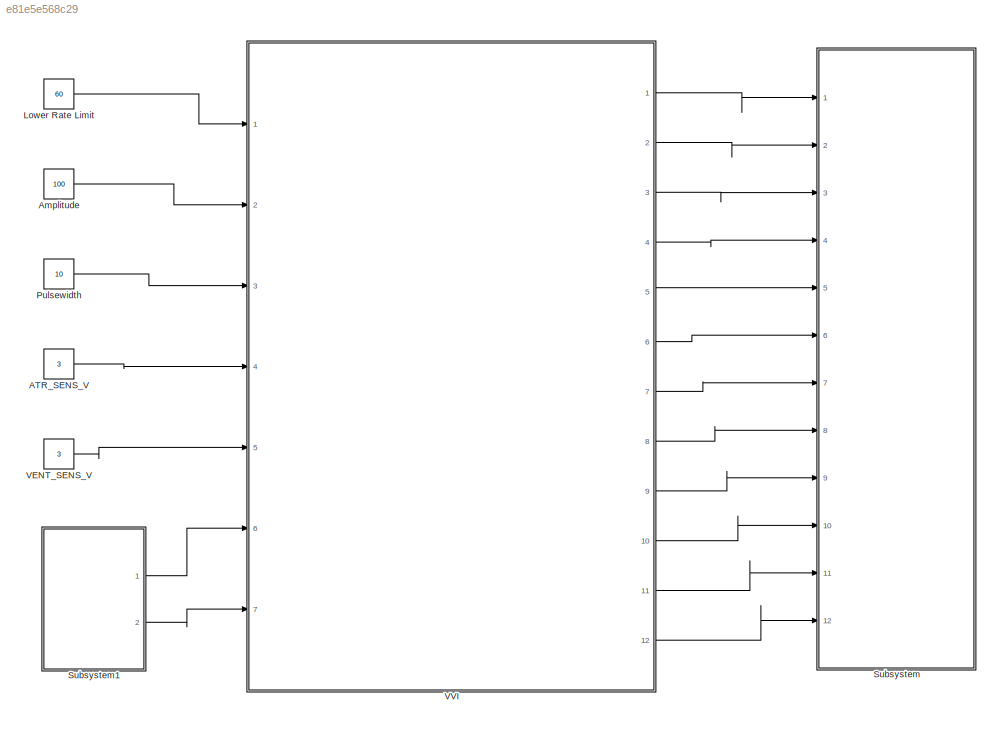
MODEL slx_e81e5e568c29
KIND model
CONFIG AbsTol = auto
CONFIG EnableMultiTasking = on
CONFIG FixedStep = 1e-3
CONFIG MaxStep = auto
CONFIG MinStep = auto
CONFIG RelTol = 1e-3
CONFIG SampleTimeConstraint = Unconstrained
CONFIG Solver = FixedStepAuto
CONFIG SolverName = FixedStepAuto
CONFIG StartTime = 0.0
CONFIG StopTime = 10.0
BLOCK [Constant] ATR_SENS_V
  Value = 3
BLOCK [Constant] Amplitude
  Value = 100
BLOCK [Constant] Lower Rate Limit
  Value = 60
BLOCK [Constant] Pulsewidth
  Value = 10
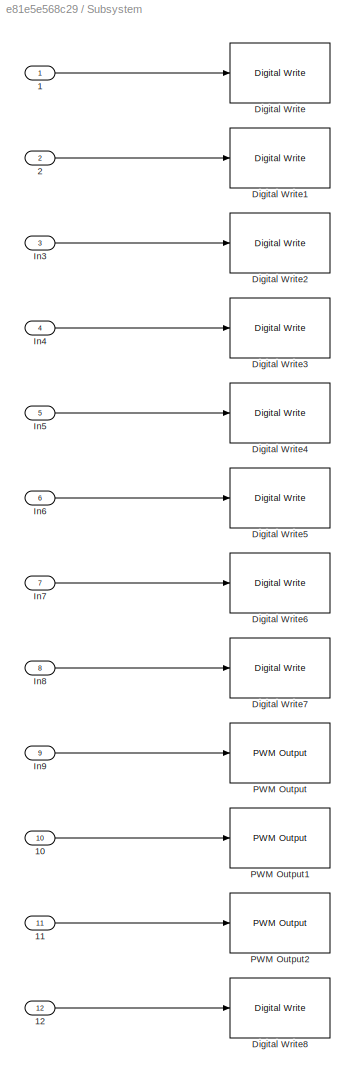
BLOCK [SubSystem] Subsystem
  Ports = [12]
BLOCK [Inport] Subsystem/1
BLOCK [Inport] Subsystem/10
  Port = 10
BLOCK [Inport] Subsystem/11
  Port = 11
BLOCK [Inport] Subsystem/12
  Port = 12
BLOCK [Inport] Subsystem/2
  Port = 2
BLOCK [Reference] Subsystem/Digital Write  REF=frdmk64flib/Digital Write
  Ports = [1]
  SourceBlock = frdmk64flib/Digital Write
  SourceType = freedomk64f.DigitalWrite
BLOCK [Reference] Subsystem/Digital Write1  REF=frdmk64flib/Digital Write
  Ports = [1]
  SourceBlock = frdmk64flib/Digital Write
  SourceType = freedomk64f.DigitalWrite
BLOCK [Reference] Subsystem/Digital Write2  REF=frdmk64flib/Digital Write
  Ports = [1]
  SourceBlock = frdmk64flib/Digital Write
  SourceType = freedomk64f.DigitalWrite
BLOCK [Reference] Subsystem/Digital Write3  REF=frdmk64flib/Digital Write
  Ports = [1]
  SourceBlock = frdmk64flib/Digital Write
  SourceType = freedomk64f.DigitalWrite
BLOCK [Reference] Subsystem/Digital Write4  REF=frdmk64flib/Digital Write
  Ports = [1]
  SourceBlock = frdmk64flib/Digital Write
  SourceType = freedomk64f.DigitalWrite
BLOCK [Reference] Subsystem/Digital Write5  REF=frdmk64flib/Digital Write
  Ports = [1]
  SourceBlock = frdmk64flib/Digital Write
  SourceType = freedomk64f.DigitalWrite
BLOCK [Reference] Subsystem/Digital Write6  REF=frdmk64flib/Digital Write
  Ports = [1]
  SourceBlock = frdmk64flib/Digital Write
  SourceType = freedomk64f.DigitalWrite
BLOCK [Reference] Subsystem/Digital Write7  REF=frdmk64flib/Digital Write
  Ports = [1]
  SourceBlock = frdmk64flib/Digital Write
  SourceType = freedomk64f.DigitalWrite
BLOCK [Reference] Subsystem/Digital Write8  REF=frdmk64flib/Digital Write
  Ports = [1]
  SourceBlock = frdmk64flib/Digital Write
  SourceType = freedomk64f.DigitalWrite
BLOCK [Inport] Subsystem/In3
  Port = 3
BLOCK [Inport] Subsystem/In4
  Port = 4
BLOCK [Inport] Subsystem/In5
  Port = 5
BLOCK [Inport] Subsystem/In6
  Port = 6
BLOCK [Inport] Subsystem/In7
  Port = 7
BLOCK [Inport] Subsystem/In8
  Port = 8
BLOCK [Inport] Subsystem/In9
  Port = 9
BLOCK [Reference] Subsystem/PWM Output  REF=frdmk64flib/PWM Output
  Ports = [1]
  SourceBlock = frdmk64flib/PWM Output
  SourceType = freedomk64f.PWMOutput
BLOCK [Reference] Subsystem/PWM Output1  REF=frdmk64flib/PWM Output
  Ports = [1]
  SourceBlock = frdmk64flib/PWM Output
  SourceType = freedomk64f.PWMOutput
BLOCK [Reference] Subsystem/PWM Output2  REF=frdmk64flib/PWM Output
  Ports = [1]
  SourceBlock = frdmk64flib/PWM Output
  SourceType = freedomk64f.PWMOutput
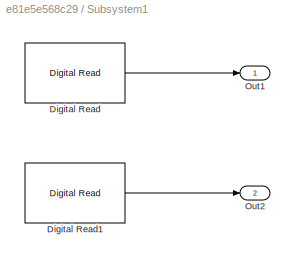
BLOCK [SubSystem] Subsystem1
  Ports = [0, 2]
BLOCK [Reference] Subsystem1/Digital Read  REF=frdmk64flib/Digital Read
  Ports = [0, 1]
  SourceBlock = frdmk64flib/Digital Read
  SourceType = freedomk64f.DigitalRead
BLOCK [Reference] Subsystem1/Digital Read1  REF=frdmk64flib/Digital Read
  Ports = [0, 1]
  SourceBlock = frdmk64flib/Digital Read
  SourceType = freedomk64f.DigitalRead
BLOCK [Outport] Subsystem1/Out1
BLOCK [Outport] Subsystem1/Out2
  Port = 2
BLOCK [Constant] VENT_SENS_V
  Value = 3
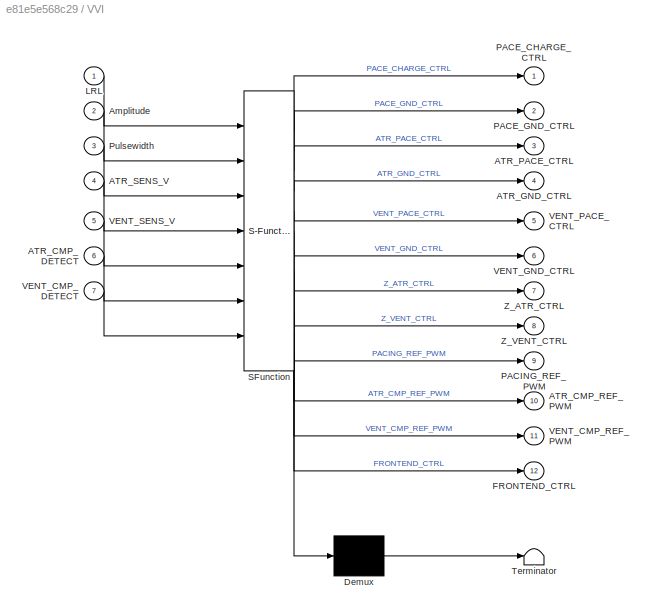
BLOCK [SubSystem] VVI
  ErrorFcn = Stateflow.Translate.translate
  PermitHierarchicalResolution = ExplicitOnly
  Ports = [7, 12]
  SFBlockType = Chart
  TreatAsAtomicUnit = on
BLOCK [Demux] VVI/ Demux 
  Outputs = 1
  Ports = [1, 1]
BLOCK [S-Function] VVI/ SFunction 
  EnableBusSupport = on
  FunctionName = sf_sfun
  PortCounts = [7 13]
  Ports = [7, 13]
  SFcnIsStateOwnerBlock = off
  SFunctionDeploymentMode = off
  Tag = Stateflow S-Function 3
BLOCK [Terminator] VVI/ Terminator 
BLOCK [Inport] VVI/ATR_CMP_DETECT
  Port = 6
BLOCK [Outport] VVI/ATR_CMP_REF_PWM
  Port = 10
BLOCK [Outport] VVI/ATR_GND_CTRL
  Port = 4
BLOCK [Outport] VVI/ATR_PACE_CTRL
  Port = 3
BLOCK [Inport] VVI/ATR_SENS_V
  Port = 4
BLOCK [Inport] VVI/Amplitude
  Port = 2
BLOCK [Outport] VVI/FRONTEND_CTRL
  Port = 12
BLOCK [Inport] VVI/LRL
BLOCK [Outport] VVI/PACE_CHARGE_CTRL
BLOCK [Outport] VVI/PACE_GND_CTRL
  Port = 2
BLOCK [Outport] VVI/PACING_REF_PWM
  Port = 9
BLOCK [Inport] VVI/Pulsewidth
  Port = 3
BLOCK [Inport] VVI/VENT_CMP_DETECT
  Port = 7
BLOCK [Outport] VVI/VENT_CMP_REF_PWM
  Port = 11
BLOCK [Outport] VVI/VENT_GND_CTRL
  Port = 6
BLOCK [Outport] VVI/VENT_PACE_CTRL
  Port = 5
BLOCK [Inport] VVI/VENT_SENS_V
  Port = 5
BLOCK [Outport] VVI/Z_ATR_CTRL
  Port = 7
BLOCK [Outport] VVI/Z_VENT_CTRL
  Port = 8
LINE ATR_SENS_V:1 -> VVI:4
LINE Amplitude:1 -> VVI:2
LINE Lower Rate Limit:1 -> VVI:1
LINE Pulsewidth:1 -> VVI:3
LINE Subsystem/10:1 -> Subsystem/PWM Output1:1
LINE Subsystem/11:1 -> Subsystem/PWM Output2:1
LINE Subsystem/12:1 -> Subsystem/Digital Write8:1
LINE Subsystem/1:1 -> Subsystem/Digital Write:1
LINE Subsystem/2:1 -> Subsystem/Digital Write1:1
LINE Subsystem/In3:1 -> Subsystem/Digital Write2:1
LINE Subsystem/In4:1 -> Subsystem/Digital Write3:1
LINE Subsystem/In5:1 -> Subsystem/Digital Write4:1
LINE Subsystem/In6:1 -> Subsystem/Digital Write5:1
LINE Subsystem/In7:1 -> Subsystem/Digital Write6:1
LINE Subsystem/In8:1 -> Subsystem/Digital Write7:1
LINE Subsystem/In9:1 -> Subsystem/PWM Output:1
LINE Subsystem1/Digital Read1:1 -> Subsystem1/Out2:1
LINE Subsystem1/Digital Read:1 -> Subsystem1/Out1:1
LINE Subsystem1:1 -> VVI:6
LINE Subsystem1:2 -> VVI:7
LINE VENT_SENS_V:1 -> VVI:5
LINE VVI:1 -> Subsystem:1
LINE VVI:10 -> Subsystem:10
LINE VVI:11 -> Subsystem:11
LINE VVI:12 -> Subsystem:12
LINE VVI:2 -> Subsystem:2
LINE VVI:3 -> Subsystem:3
LINE VVI:4 -> Subsystem:4
LINE VVI:5 -> Subsystem:5
LINE VVI:6 -> Subsystem:6
LINE VVI:7 -> Subsystem:7
LINE VVI:8 -> Subsystem:8
LINE VVI:9 -> Subsystem:9
CHART VVI states=4 transitions=6
  STATE_LABEL 'Initialization\nentry:\nFRONTEND_CTRL = 1;\nATR_CMP_REF_PWM = 100*ATR_SENS_V/5\nVENT_CMP_REF_PWM = 100*VENT_SENS_V/5\n'
  STATE_LABEL 'Pacing\nentry:\nPACE_CHARGE_CTRL=0;\nPACE_GND_CTRL=1;\nATR_PACE_CTRL=0;\nATR_GND_CTRL=0;\nZ_ATR_CTRL=0;\nZ_VENT_CTRL=0;\nVENT_GND_CTRL=0;\nVENT_PACE_CTRL=1;\n'
  STATE_LABEL 'Charging\nentry:\nATR_PACE_CTRL=0;\nVENT_PACE_CTRL=0;\nPACING_REF_PWM=Amplitude;\nPACE_CHARGE_CTRL=1;\n'
  STATE_LABEL 'Discharging\nentry:\nPACE_GND_CTRL=1;\nVENT_PACE_CTRL=0;\nZ_ATR_CTRL=0;\nZ_VENT_CTRL=0;\nATR_PACE_CTRL=0;\nATR_GND_CTRL=0;\nVENT_GND_CTRL=1;\n'
CHART  states=0 transitions=0
